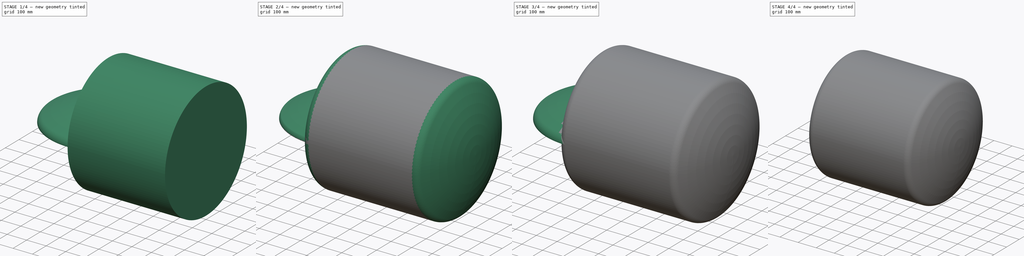
[diagram: build sequence overview — one tinted view per stage of 4, left to right]
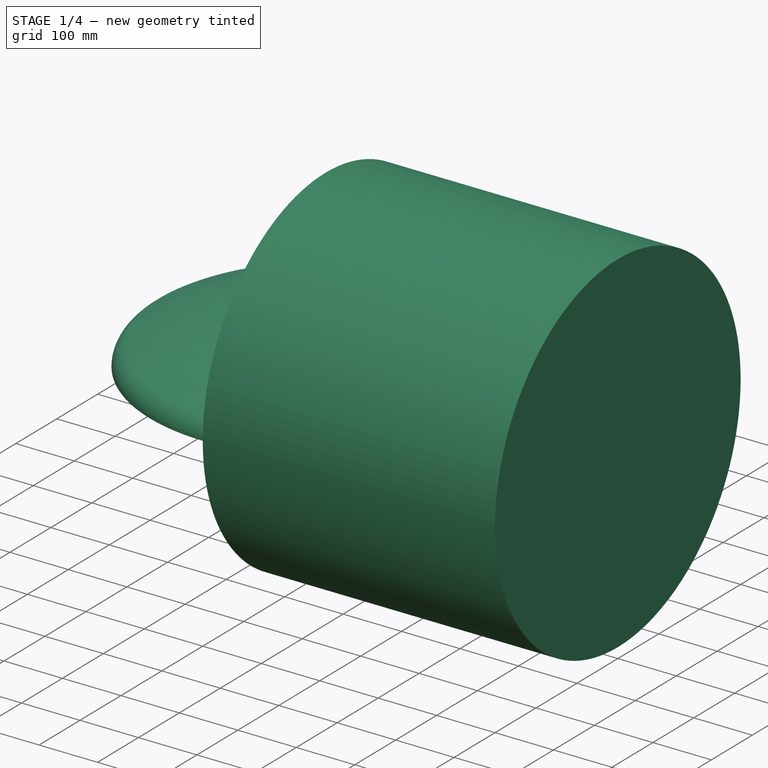
[diagram: stage 1 of 4 — iso view after this stage's code; geometry added in this stage tinted green]
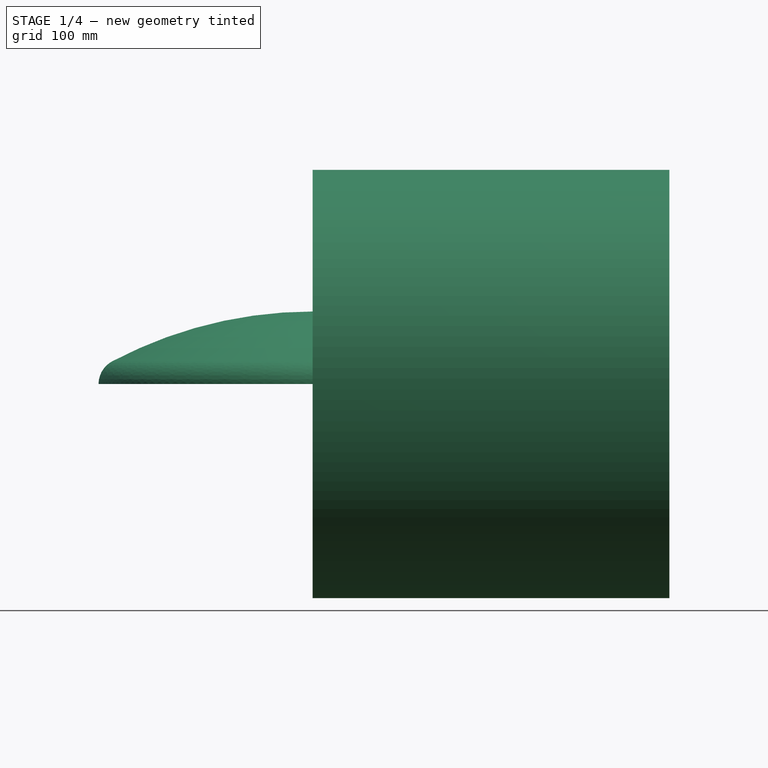
[diagram: stage 1 of 4 — front view after this stage's code; geometry added in this stage tinted green]
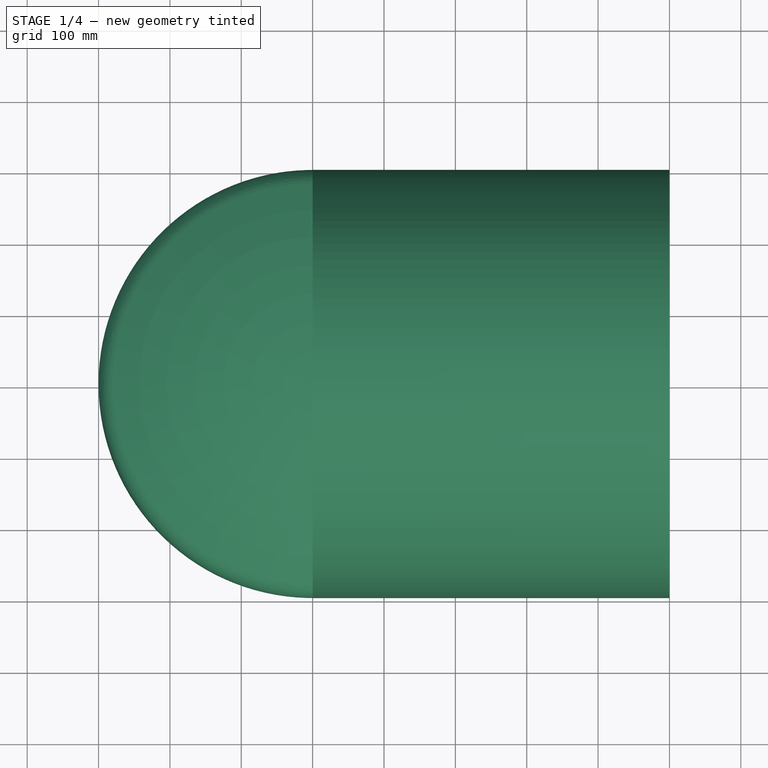
[diagram: stage 1 of 4 — top view after this stage's code; geometry added in this stage tinted green]
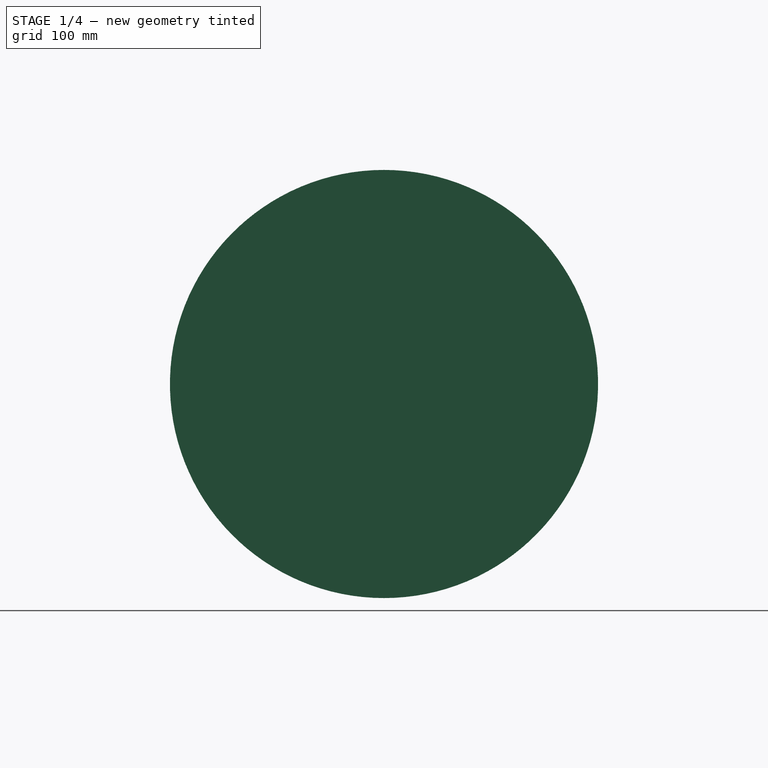
[diagram: stage 1 of 4 — right view after this stage's code; geometry added in this stage tinted green]
FCSTD DOCUMENT  (FreeCAD 0.20R29177 (Git))
Label: TorisphericalCapsule
License: All rights reserved
LicenseURL: http://en.wikipedia.org/wiki/All_rights_reserved
objects: Sketcher::SketchObject×6, PartDesign::Revolution×6, PartDesign::Body×6, Part::Cut×2, Part::Compound×2, Spreadsheet::Sheet×1, Part::FeaturePython×1, Part::Cylinder×1
note: 30 computed .brp shape members not serialized (recipe doc carries the construction recipe); baked Part::Feature solids carry a one-line shape summary decoded from their .brp

FEATURE [Sketcher::SketchObject] Sketch002
  FullyConstrained = true
  MapMode = 4
  Placement = pos=(0,0,0) rot=(0.57735,0.57735,-0.57735;2.0944rad)
  Support = -> [YZ_Plane002]
  expr: .Constraints.R = <<Parameters>>.R
  expr: .Constraints.a = <<Parameters>>.a
  expr: .Constraints.c = <<Parameters>>.c
  expr: .Constraints.ht = <<Parameters>>.ht
  sketch-geometry (5):
    g0: LineSegment StartX=0 StartY=7.35e-14 StartZ=0 EndX=-101.603 EndY=7.35e-14 EndZ=0
    g1: LineSegment StartX=0 StartY=7.35e-14 StartZ=0 EndX=0 EndY=264 EndZ=0
    g2: LineSegment StartX=0 StartY=264 StartZ=0 EndX=2.2e-15 EndY=300 EndZ=0
    g3: ArcOfCircle CenterX=0 CenterY=264 CenterZ=0 NormalX=0 NormalY=0 NormalZ=1 AngleXU=0 Radius=36 StartAngle=1.5708 EndAngle=2.65447
    g4: ArcOfCircle CenterX=498.397 CenterY=0 CenterZ=0 NormalX=0 NormalY=0 NormalZ=1 AngleXU=0 Radius=600 StartAngle=2.65447 EndAngle=3.14159
  constraints (15):
    c: Coincident(g0,g-1)
    c: Horizontal(g0)
    c: Coincident(g1,g0)
    c: PointOnObject(g1,g-2)
    c: DistanceX(g0,g0) = 101.603  'ht'
    c: DistanceY(g1,g1) = 264  'c'
    c: Coincident(g2,g1)
    c: PointOnObject(g2,g-2)
    c: DistanceY(g2,g2) = 36  'a'
    c: Coincident(g3,g1)
    c: PointOnObject(g4,g-1)
    c: Radius(g4) = 600  'R'
    c: Coincident(g4,g0)
    c: Coincident(g3,g2)
    c: Coincident(g4,g3)
FEATURE [PartDesign::Revolution] Revolution002
  Angle = 360
  Axis = (1e-16,-1e-16,-1)
  Base = (0,0,0)
  Placement = pos=(0,0,0) rot=(0.57735,0.57735,0.57735;2.0944rad)
  Profile = -> Sketch002
  ReferenceAxis = -> Sketch002 [H_Axis]
FEATURE [Sketcher::SketchObject] Sketch005
  FullyConstrained = true
  MapMode = 4
  Placement = pos=(0,0,0) rot=(0.57735,0.57735,-0.57735;2.0944rad)
  Support = -> [YZ_Plane005]
  expr: .Constraints.R = <<Parameters>>.R
  expr: .Constraints.a = <<Parameters>>.a
  expr: .Constraints.c = <<Parameters>>.c
  expr: .Constraints.ht = <<Parameters>>.ht
  sketch-geometry (5):
    g0: LineSegment StartX=0 StartY=7.35e-14 StartZ=0 EndX=-101.603 EndY=7.35e-14 EndZ=0
    g1: LineSegment StartX=0 StartY=7.35e-14 StartZ=0 EndX=0 EndY=264 EndZ=0
    g2: LineSegment StartX=0 StartY=264 StartZ=0 EndX=2.2e-15 EndY=300 EndZ=0
    g3: ArcOfCircle CenterX=0 CenterY=264 CenterZ=0 NormalX=0 NormalY=0 NormalZ=1 AngleXU=0 Radius=36 StartAngle=1.5708 EndAngle=2.65447
    g4: ArcOfCircle CenterX=498.397 CenterY=0 CenterZ=0 NormalX=0 NormalY=0 NormalZ=1 AngleXU=0 Radius=600 StartAngle=2.65447 EndAngle=3.14159
  constraints (15):
    c: Coincident(g0,g-1)
    c: Horizontal(g0)
    c: Coincident(g1,g0)
    c: PointOnObject(g1,g-2)
    c: DistanceX(g0,g0) = 101.603  'ht'
    c: DistanceY(g1,g1) = 264  'c'
    c: Coincident(g2,g1)
    c: PointOnObject(g2,g-2)
    c: DistanceY(g2,g2) = 36  'a'
    c: Coincident(g3,g1)
    c: PointOnObject(g4,g-1)
    c: Radius(g4) = 600  'R'
    c: Coincident(g4,g0)
    c: Coincident(g3,g2)
    c: Coincident(g4,g3)
FEATURE [PartDesign::Revolution] Revolution005
  Angle = 360
  Axis = (1e-16,-1e-16,-1)
  Base = (0,0,0)
  Placement = pos=(0,0,0) rot=(0.57735,0.57735,0.57735;2.0944rad)
  Profile = -> Sketch005
  ReferenceAxis = -> Sketch005 [H_Axis]
FEATURE [PartDesign::Body] Body005  label="DisplacedBack"
  Group = -> [Sketch005,Revolution005]
  Origin = -> Origin005
  Placement = pos=(500,0,0) rot=(0,1,0;1.5708rad)
  Tip = -> Revolution005
  expr: .Placement.Base.x = Spreadsheet.cylinder_length
FEATURE [Part::Cylinder] Cylinder  label="DisplacedTube"
  Angle = 360
  AttacherType = Attacher::AttachEngine3D
  FirstAngle = 0
  Height = 500
  Placement = pos=(0,0,0) rot=(0,1,0;1.5708rad)
  Radius = 300
  SecondAngle = 0
  expr: Height = Spreadsheet.cylinder_length
  expr: Radius = Spreadsheet.cylinder_radius
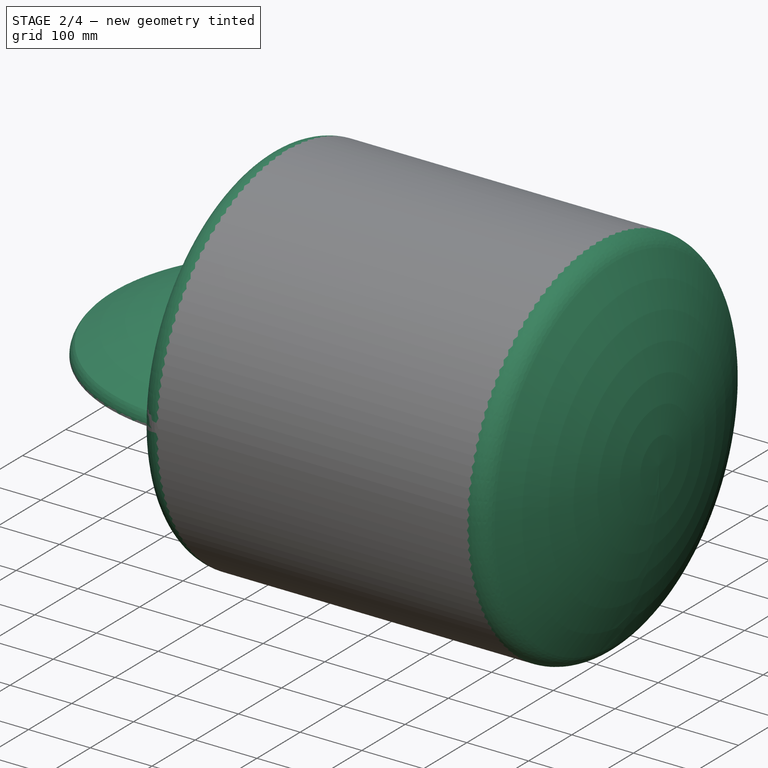
[diagram: stage 2 of 4 — iso view after this stage's code; geometry added in this stage tinted green]
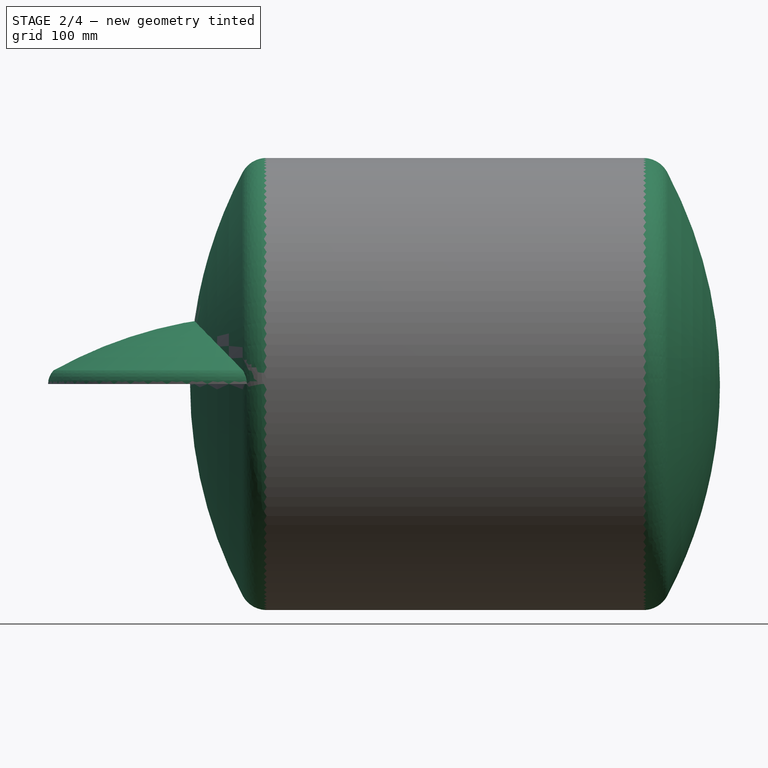
[diagram: stage 2 of 4 — front view after this stage's code; geometry added in this stage tinted green]
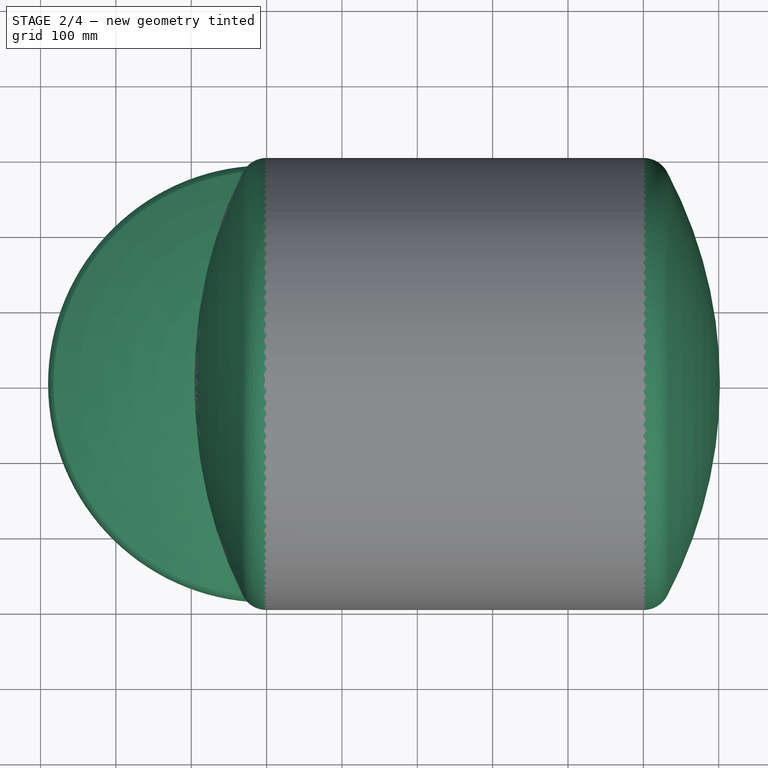
[diagram: stage 2 of 4 — top view after this stage's code; geometry added in this stage tinted green]
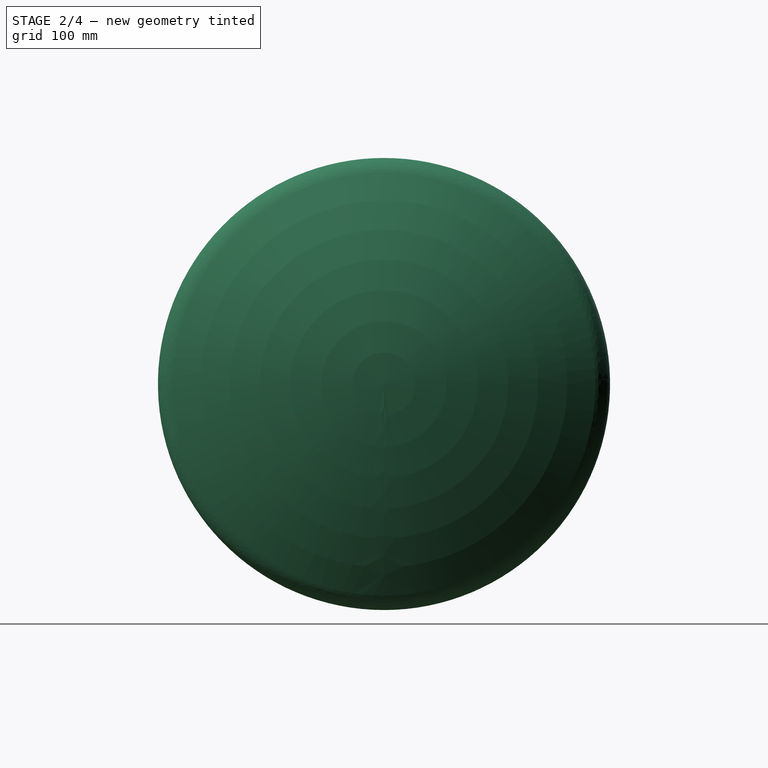
[diagram: stage 2 of 4 — right view after this stage's code; geometry added in this stage tinted green]
FEATURE [PartDesign::Body] Body003  label="OuterShellRear"
  Group = -> [Sketch003,Revolution003]
  Origin = -> Origin003
  Tip = -> Revolution003
FEATURE [Sketcher::SketchObject] Sketch004  label="InnerShellSketch001"
  FullyConstrained = true
  MapMode = 4
  Placement = pos=(0,0,0) rot=(0.57735,0.57735,-0.57735;2.0944rad)
  Support = -> [YZ_Plane004]
  expr: .Constraints.R_inner = <<Parameters>>.R_inner
  expr: .Constraints.a_inner = <<Parameters>>.a_inner
  expr: .Constraints.c_inner = <<Parameters>>.c_inner
  expr: .Constraints.ht_inner = <<Parameters>>.h_inner
  sketch-geometry (5):
    g0: LineSegment StartX=1.12e-14 StartY=7.1e-14 StartZ=0 EndX=1.12e-14 EndY=264 EndZ=0
    g1: LineSegment StartX=1.12e-14 StartY=264 StartZ=0 EndX=1.12e-14 EndY=290 EndZ=0
    g2: LineSegment StartX=1.12e-14 StartY=7.1e-14 StartZ=0 EndX=-91.6026 EndY=7.1e-14 EndZ=0
    g3: ArcOfCircle CenterX=1.12e-14 CenterY=264 CenterZ=0 NormalX=0 NormalY=0 NormalZ=1 AngleXU=0 Radius=26 StartAngle=1.5708 EndAngle=2.33633
    g4: ArcOfCircle CenterX=488.397 CenterY=0 CenterZ=0 NormalX=0 NormalY=0 NormalZ=1 AngleXU=0 Radius=580 StartAngle=2.63238 EndAngle=3.14159
  constraints (15):
    c: Coincident(g0,g-1)
    c: Vertical(g0)
    c: Coincident(g1,g0)
    c: Vertical(g1)
    c: Coincident(g2,g0)
    c: Horizontal(g2)
    c: Coincident(g3,g0)
    c: PointOnObject(g4,g-1)
    c: DistanceX(g2,g2) = 91.6026  'ht_inner'
    c: DistanceY(g1,g1) = 26  'a_inner'
    c: DistanceY(g0,g0) = 264  'c_inner'
    c: Radius(g4) = 580  'R_inner'
    c: Coincident(g4,g2)
    c: Coincident(g3,g1)
    c: Coincident(g4,g3)
FEATURE [PartDesign::Revolution] Revolution004
  Angle = 360
  Axis = (1e-16,-1e-16,-1)
  Base = (0,0,0)
  Placement = pos=(0,0,0) rot=(0.57735,0.57735,0.57735;2.0944rad)
  Profile = -> Sketch004
  ReferenceAxis = -> Sketch004 [H_Axis]
FEATURE [Part::FeaturePython] Tube  # WARN: FeaturePython — macro-defined, semantics opaque (R4)
  AttacherType = Attacher::AttachEngine3D
  Height = 500
  InnerRadius = 285
  OuterRadius = 300
  Placement = pos=(0,0,0) rot=(0,1,0;1.5708rad)
  expr: Height = Spreadsheet.cylinder_length
  expr: InnerRadius = Spreadsheet.cylinder_radius - Spreadsheet.cylinder_thickness
  expr: OuterRadius = Spreadsheet.cylinder_radius
FEATURE [Part::Compound] Compound001  label="DisplacedModel"
  Links = -> [Cylinder,Body005,Body002]
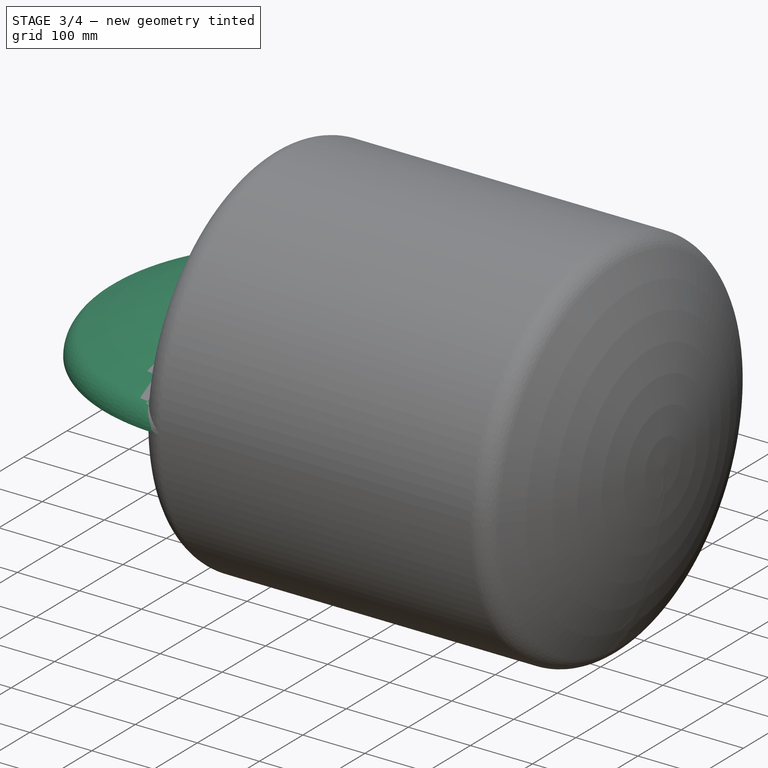
[diagram: stage 3 of 4 — iso view after this stage's code; geometry added in this stage tinted green]
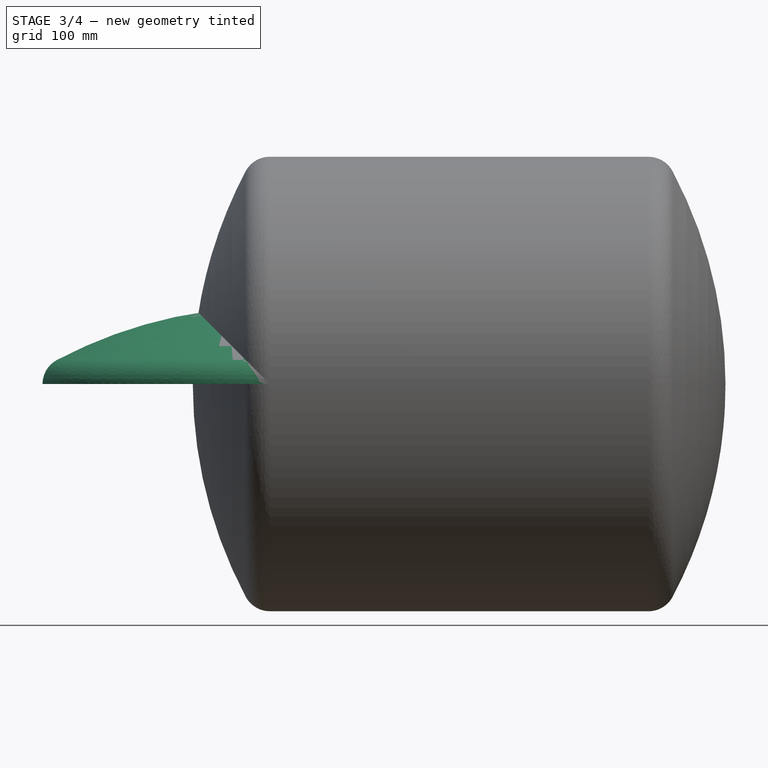
[diagram: stage 3 of 4 — front view after this stage's code; geometry added in this stage tinted green]
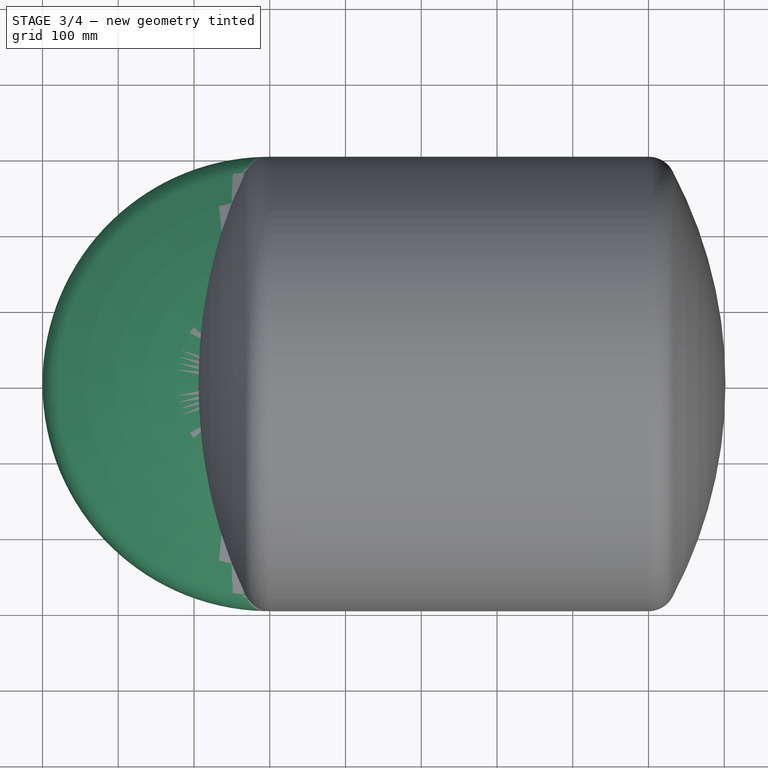
[diagram: stage 3 of 4 — top view after this stage's code; geometry added in this stage tinted green]
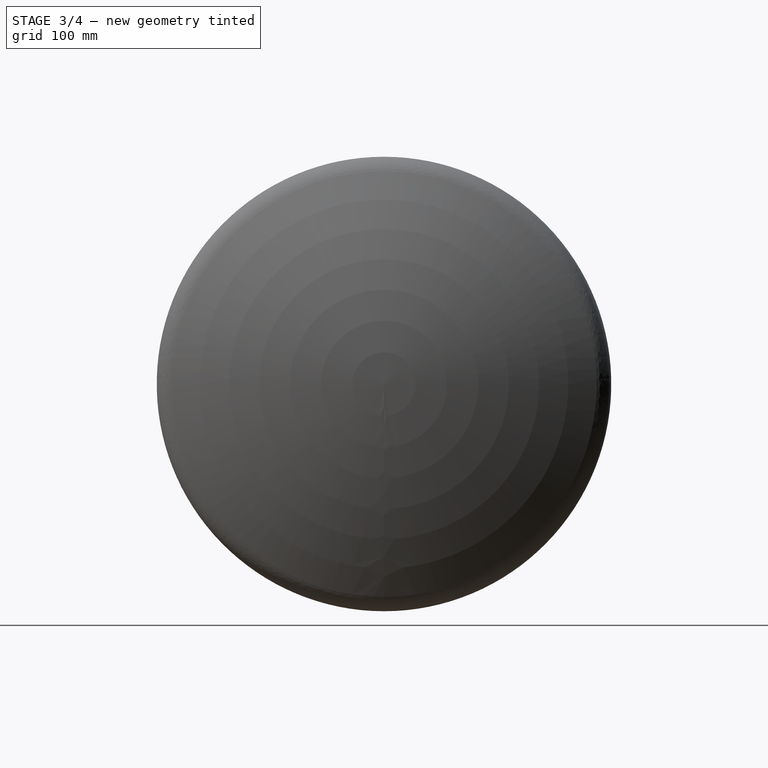
[diagram: stage 3 of 4 — right view after this stage's code; geometry added in this stage tinted green]
FEATURE [PartDesign::Body] Body001  label="InnerShell"
  Group = -> [Sketch001,Revolution]
  Origin = -> Origin001
  Tip = -> Revolution
FEATURE [PartDesign::Revolution] Revolution001
  Angle = 360
  Axis = (1e-16,-1e-16,-1)
  Base = (0,0,0)
  Placement = pos=(0,0,0) rot=(0.57735,0.57735,0.57735;2.0944rad)
  Profile = -> Sketch
  ReferenceAxis = -> Sketch [H_Axis]
FEATURE [PartDesign::Body] Body002  label="DisplacedFront"
  Group = -> [Sketch002,Revolution002]
  Origin = -> Origin002
  Placement = pos=(0,0,0) rot=(0,1,0;-1.5708rad)
  Tip = -> Revolution002
FEATURE [Sketcher::SketchObject] Sketch003  label="OuterShellSketch001"
  FullyConstrained = true
  MapMode = 4
  Placement = pos=(0,0,0) rot=(0.57735,0.57735,-0.57735;2.0944rad)
  Support = -> [YZ_Plane003]
  expr: .Constraints.R = <<Parameters>>.R
  expr: .Constraints.a = <<Parameters>>.a
  expr: .Constraints.c = <<Parameters>>.c
  expr: .Constraints.ht = <<Parameters>>.ht
  sketch-geometry (5):
    g0: LineSegment StartX=0 StartY=7.35e-14 StartZ=0 EndX=-101.603 EndY=7.35e-14 EndZ=0
    g1: LineSegment StartX=0 StartY=7.35e-14 StartZ=0 EndX=0 EndY=264 EndZ=0
    g2: LineSegment StartX=0 StartY=264 StartZ=0 EndX=2.2e-15 EndY=300 EndZ=0
    g3: ArcOfCircle CenterX=0 CenterY=264 CenterZ=0 NormalX=0 NormalY=0 NormalZ=1 AngleXU=0 Radius=36 StartAngle=1.5708 EndAngle=2.65447
    g4: ArcOfCircle CenterX=498.397 CenterY=0 CenterZ=0 NormalX=0 NormalY=0 NormalZ=1 AngleXU=0 Radius=600 StartAngle=2.65447 EndAngle=3.14159
  constraints (15):
    c: Coincident(g0,g-1)
    c: Horizontal(g0)
    c: Coincident(g1,g0)
    c: PointOnObject(g1,g-2)
    c: DistanceX(g0,g0) = 101.603  'ht'
    c: DistanceY(g1,g1) = 264  'c'
    c: Coincident(g2,g1)
    c: PointOnObject(g2,g-2)
    c: DistanceY(g2,g2) = 36  'a'
    c: Coincident(g3,g1)
    c: PointOnObject(g4,g-1)
    c: Radius(g4) = 600  'R'
    c: Coincident(g4,g0)
    c: Coincident(g3,g2)
    c: Coincident(g4,g3)
FEATURE [PartDesign::Revolution] Revolution003
  Angle = 360
  Axis = (1e-16,-1e-16,-1)
  Base = (0,0,0)
  Placement = pos=(0,0,0) rot=(0.57735,0.57735,0.57735;2.0944rad)
  Profile = -> Sketch003
  ReferenceAxis = -> Sketch003 [H_Axis]
FEATURE [PartDesign::Body] Body004  label="InnerShellRear"
  Group = -> [Sketch004,Revolution004]
  Origin = -> Origin004
  Tip = -> Revolution004
FEATURE [Part::Cut] Cut001  label="Rear"
  Base = -> Body003
  Placement = pos=(500,0,0) rot=(0,1,0;1.5708rad)
  Tool = -> Body004
  expr: .Placement.Base.x = Spreadsheet.cylinder_length
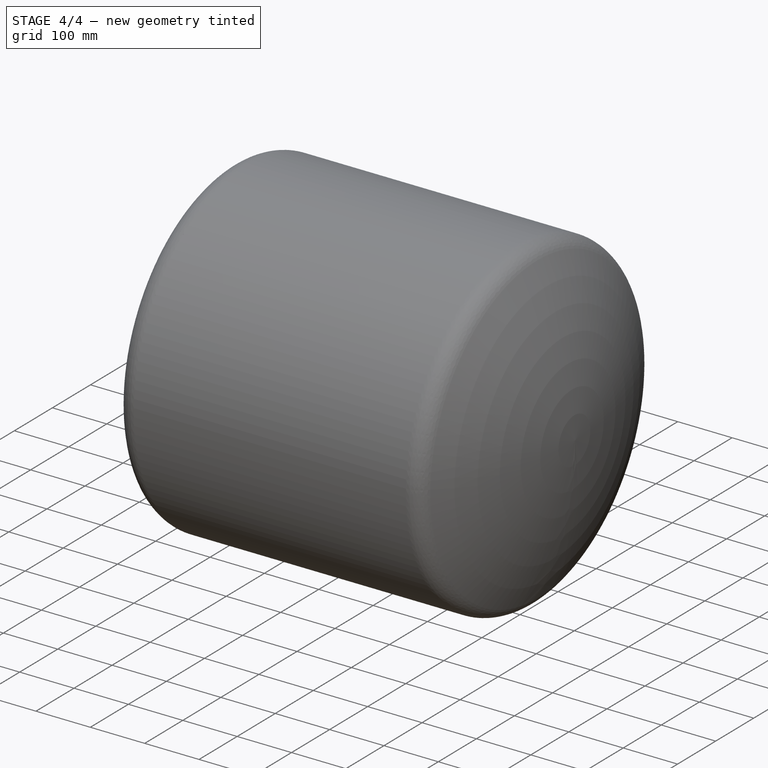
[diagram: stage 4 of 4 — iso view after this stage's code; geometry added in this stage tinted green]
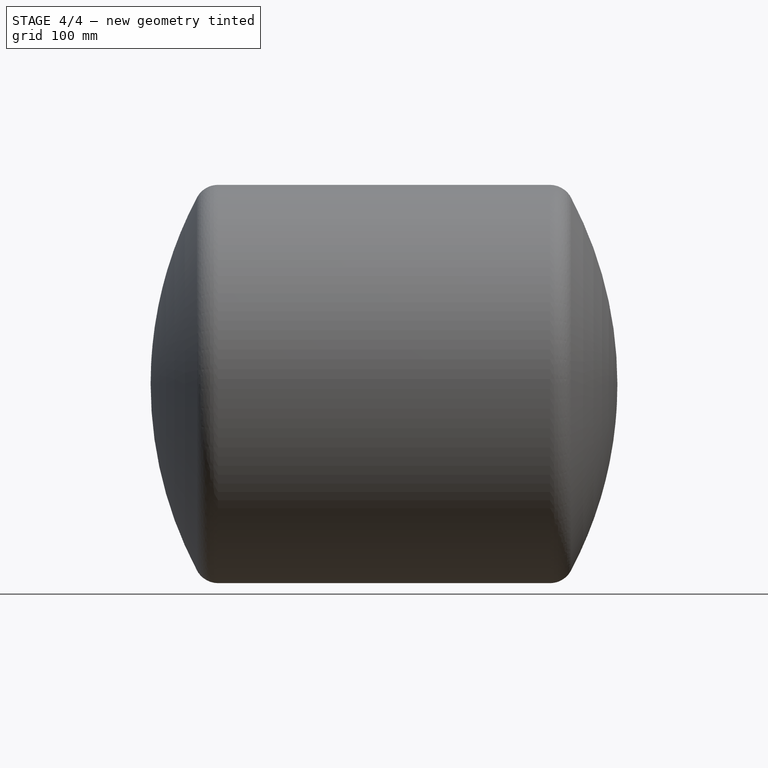
[diagram: stage 4 of 4 — front view after this stage's code; geometry added in this stage tinted green]
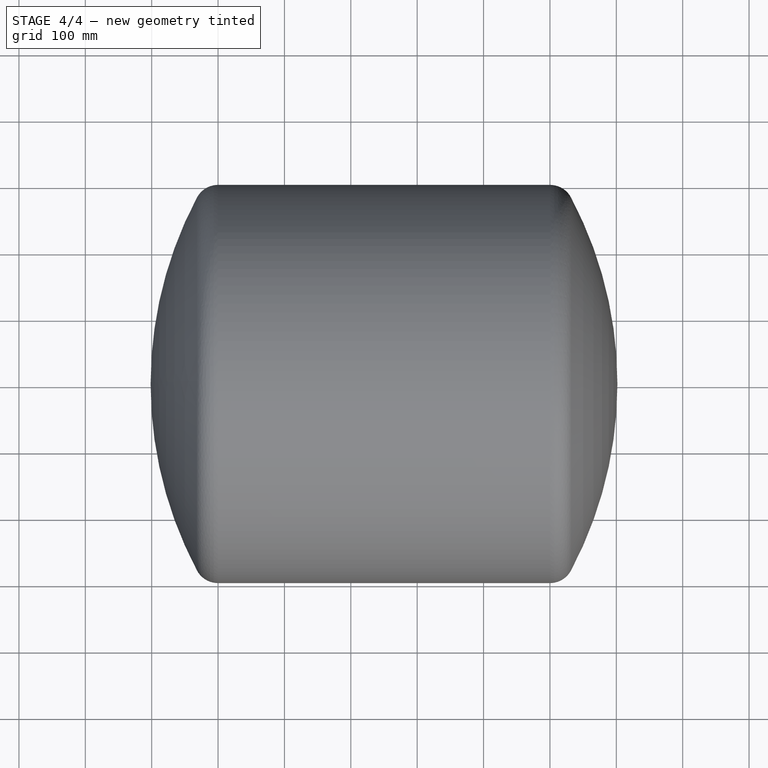
[diagram: stage 4 of 4 — top view after this stage's code; geometry added in this stage tinted green]
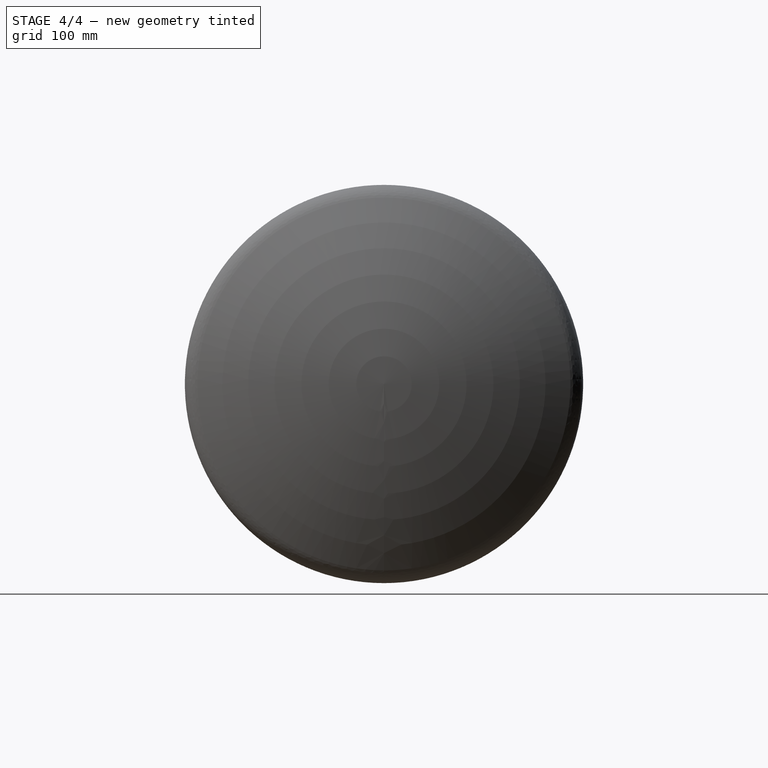
[diagram: stage 4 of 4 — right view after this stage's code; geometry added in this stage tinted green]
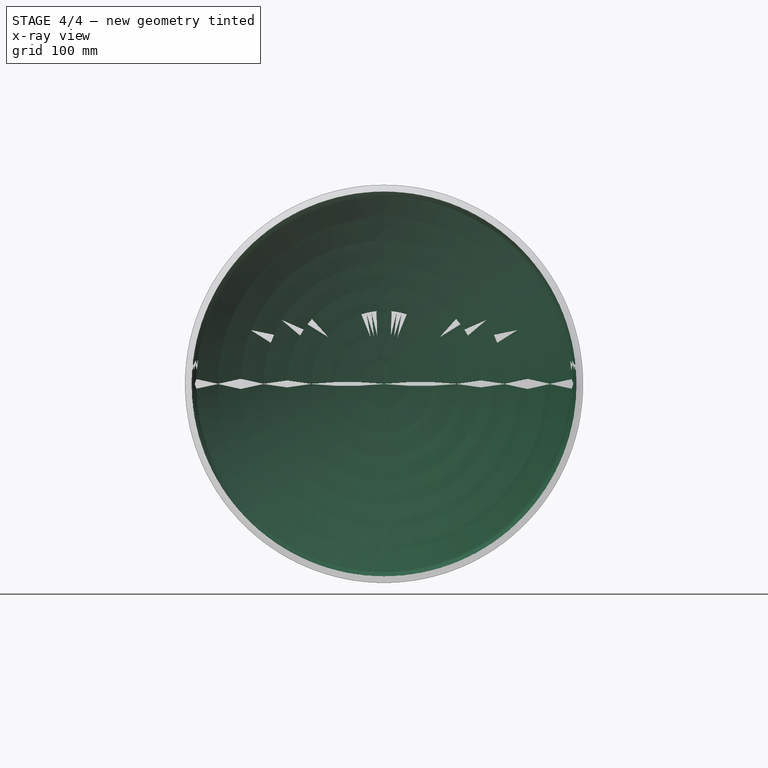
[diagram: stage 4 of 4 — x-ray composite at the right view; earlier geometry ghosted, this stage's added geometry solid]
FEATURE [Spreadsheet::Sheet] Spreadsheet  label="Parameters"
  cells = A1=Cylinder Radius; B1(cylinder_radius)==0.3m; A2=Cylinder Length; B2(cylinder_length)==0.5m; A3=Cylinder Thickness; B3(cylinder_thickness)==0.015m; A4=Crown Ratio; B4(crown_ratio)=1; A5=Knuckle Ratio; B5(knuckle_ratio)=0.06; A6=Endcap Thickness; B6(endcap_thickness)==0.01m; A8=Derived; A9=R; B9(R)==2 * B1 * B4; A10=a; B10(a)==2 * B1 * B5; A11=c; B11(c)==B1 - B10; A12=h; B12(ht)==B9 - sqrt((B10 + B11 - B9) * (B10 - B11 - B9)); A14=Inner R; B14(R_inner)==2 * (B1 - B6) * B4; A15=Inner a; B15(a_inner)==B10 - B6; A16=Inner c; B16(c_inner)==B11; A17=Inner h; B17(h_inner)==B12 - B6
FEATURE [Sketcher::SketchObject] Sketch  label="OuterShellSketch"
  FullyConstrained = true
  MapMode = 4
  Placement = pos=(0,0,0) rot=(0.57735,0.57735,-0.57735;2.0944rad)
  Support = -> [YZ_Plane]
  expr: .Constraints.R = <<Parameters>>.R
  expr: .Constraints.a = <<Parameters>>.a
  expr: .Constraints.c = <<Parameters>>.c
  expr: .Constraints.ht = <<Parameters>>.ht
  sketch-geometry (5):
    g0: LineSegment StartX=0 StartY=7.35e-14 StartZ=0 EndX=-101.603 EndY=7.35e-14 EndZ=0
    g1: LineSegment StartX=0 StartY=7.35e-14 StartZ=0 EndX=0 EndY=264 EndZ=0
    g2: LineSegment StartX=0 StartY=264 StartZ=0 EndX=2.2e-15 EndY=300 EndZ=0
    g3: ArcOfCircle CenterX=0 CenterY=264 CenterZ=0 NormalX=0 NormalY=0 NormalZ=1 AngleXU=0 Radius=36 StartAngle=1.5708 EndAngle=2.65447
    g4: ArcOfCircle CenterX=498.397 CenterY=0 CenterZ=0 NormalX=0 NormalY=0 NormalZ=1 AngleXU=0 Radius=600 StartAngle=2.65447 EndAngle=3.14159
  constraints (15):
    c: Coincident(g0,g-1)
    c: Horizontal(g0)
    c: Coincident(g1,g0)
    c: PointOnObject(g1,g-2)
    c: DistanceX(g0,g0) = 101.603  'ht'
    c: DistanceY(g1,g1) = 264  'c'
    c: Coincident(g2,g1)
    c: PointOnObject(g2,g-2)
    c: DistanceY(g2,g2) = 36  'a'
    c: Coincident(g3,g1)
    c: PointOnObject(g4,g-1)
    c: Radius(g4) = 600  'R'
    c: Coincident(g4,g0)
    c: Coincident(g3,g2)
    c: Coincident(g4,g3)
FEATURE [Sketcher::SketchObject] Sketch001  label="InnerShellSketch"
  FullyConstrained = true
  MapMode = 4
  Placement = pos=(0,0,0) rot=(0.57735,0.57735,-0.57735;2.0944rad)
  Support = -> [YZ_Plane001]
  expr: .Constraints.R_inner = <<Parameters>>.R_inner
  expr: .Constraints.a_inner = <<Parameters>>.a_inner
  expr: .Constraints.c_inner = <<Parameters>>.c_inner
  expr: .Constraints.ht_inner = <<Parameters>>.h_inner
  sketch-geometry (5):
    g0: LineSegment StartX=1.12e-14 StartY=7.1e-14 StartZ=0 EndX=1.12e-14 EndY=264 EndZ=0
    g1: LineSegment StartX=1.12e-14 StartY=264 StartZ=0 EndX=1.12e-14 EndY=290 EndZ=0
    g2: LineSegment StartX=1.12e-14 StartY=7.1e-14 StartZ=0 EndX=-91.6026 EndY=7.1e-14 EndZ=0
    g3: ArcOfCircle CenterX=1.12e-14 CenterY=264 CenterZ=0 NormalX=0 NormalY=0 NormalZ=1 AngleXU=0 Radius=26 StartAngle=1.5708 EndAngle=2.33633
    g4: ArcOfCircle CenterX=488.397 CenterY=0 CenterZ=0 NormalX=0 NormalY=0 NormalZ=1 AngleXU=0 Radius=580 StartAngle=2.63238 EndAngle=3.14159
  constraints (15):
    c: Coincident(g0,g-1)
    c: Vertical(g0)
    c: Coincident(g1,g0)
    c: Vertical(g1)
    c: Coincident(g2,g0)
    c: Horizontal(g2)
    c: Coincident(g3,g0)
    c: PointOnObject(g4,g-1)
    c: DistanceX(g2,g2) = 91.6026  'ht_inner'
    c: DistanceY(g1,g1) = 26  'a_inner'
    c: DistanceY(g0,g0) = 264  'c_inner'
    c: Radius(g4) = 580  'R_inner'
    c: Coincident(g4,g2)
    c: Coincident(g3,g1)
    c: Coincident(g4,g3)
FEATURE [PartDesign::Revolution] Revolution
  Angle = 360
  Axis = (1e-16,-1e-16,-1)
  Base = (0,0,0)
  Placement = pos=(0,0,0) rot=(0.57735,0.57735,0.57735;2.0944rad)
  Profile = -> Sketch001
  ReferenceAxis = -> Sketch001 [H_Axis]
FEATURE [PartDesign::Body] Body  label="OuterShell"
  Group = -> [Sketch,Revolution001]
  Origin = -> Origin
  Tip = -> Revolution001
FEATURE [Part::Cut] Cut  label="Front"
  Base = -> Body
  Placement = pos=(0,0,0) rot=(0,1,0;-1.5708rad)
  Tool = -> Body001
FEATURE [Part::Compound] Compound  label="Model"
  Links = -> [Cut,Cut001,Tube]
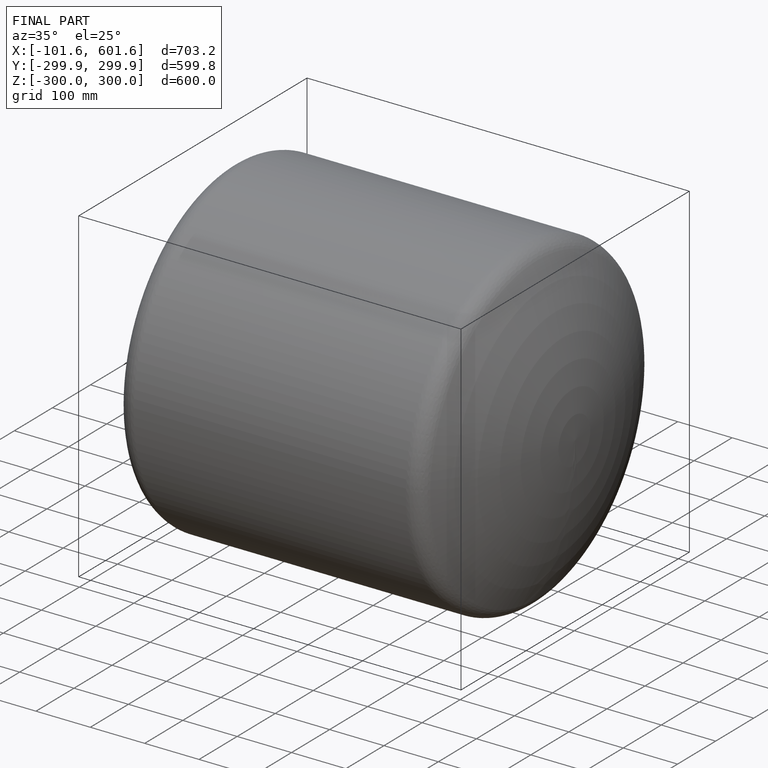
[diagram: finished part — iso view with bounding-box wireframe]
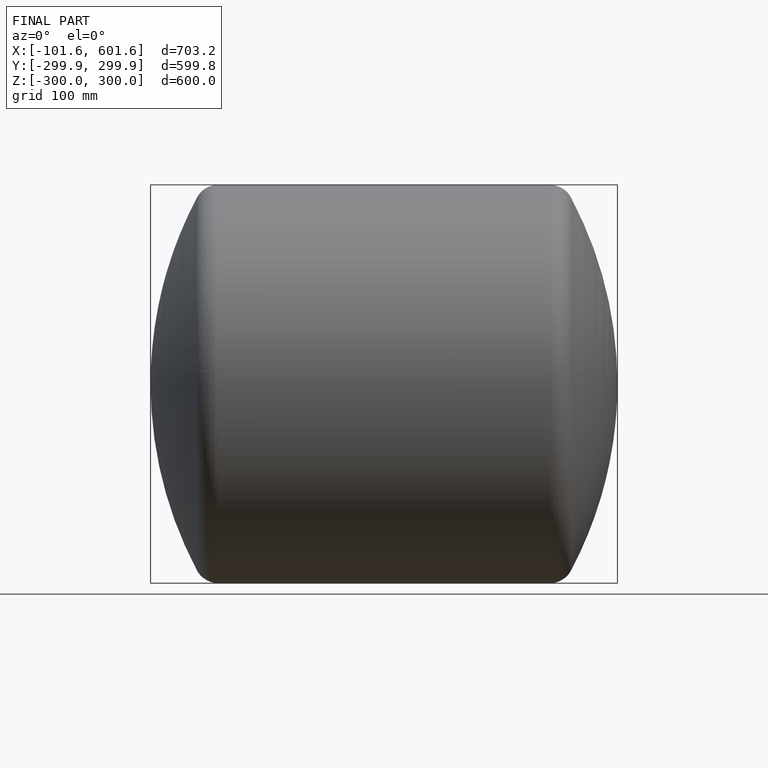
[diagram: finished part — front view with bounding-box wireframe]
